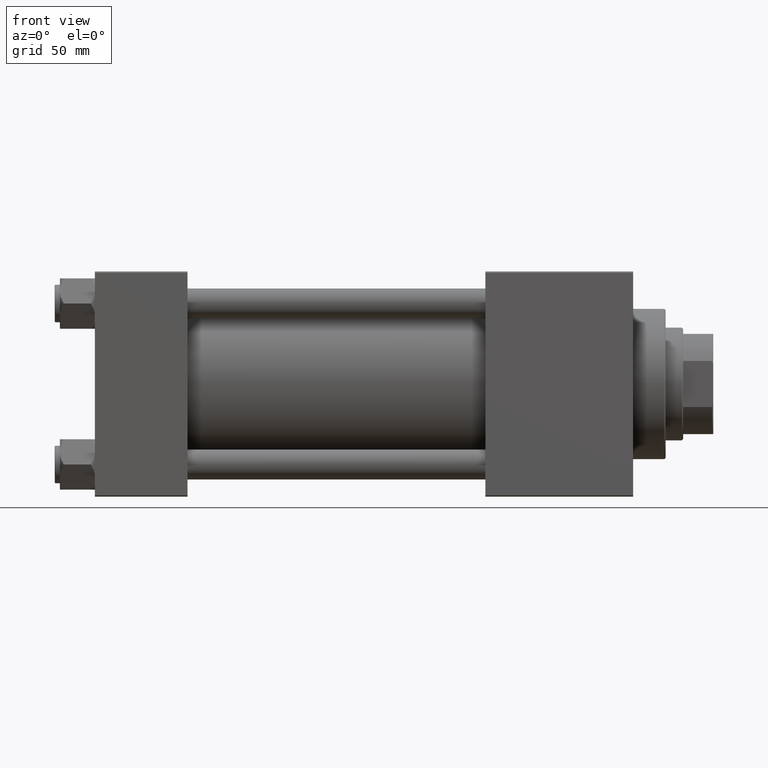
[diagram: clean part render]
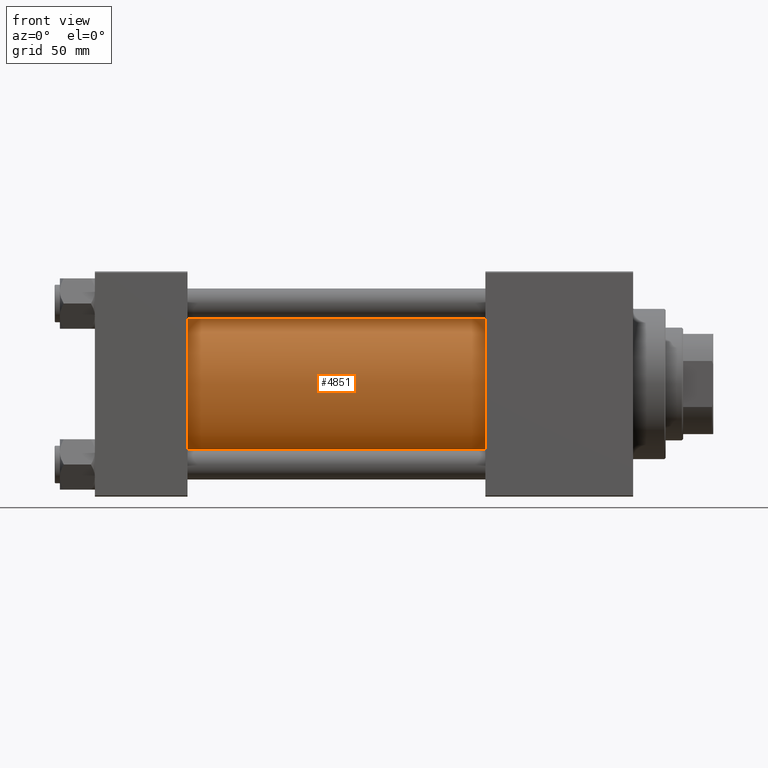
[diagram: same view with one face highlighted and labeled with its STEP entity id]
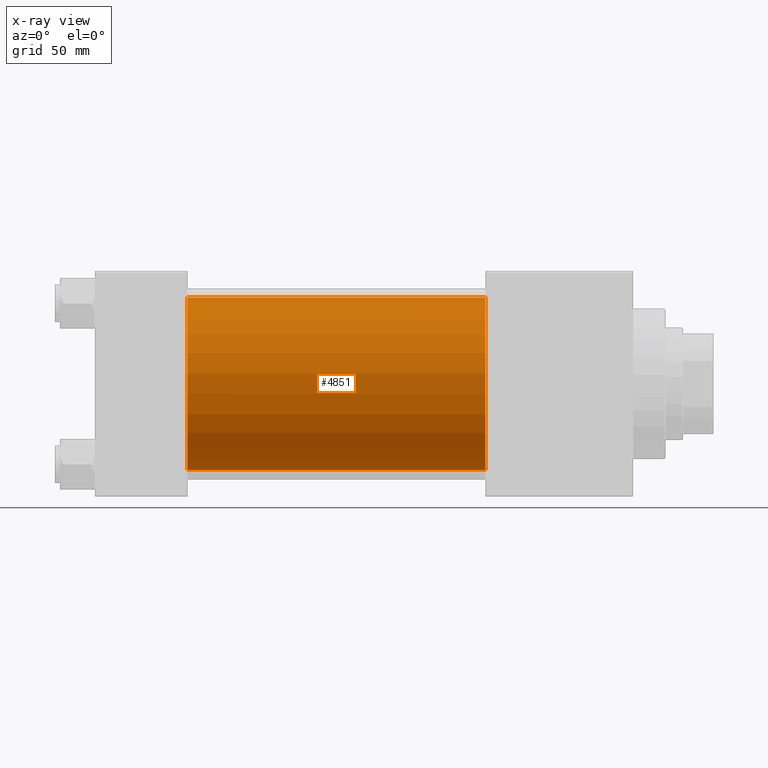
[diagram: x-ray of the same camera — body ghosted, the highlighted face saturated]
A machine part, front view. The second image highlights one B-rep face of the part: STEP entity #4851.
The next image is the same camera in x-ray: the body ghosted, the highlighted face saturated — about 2% of this face is hidden behind the body in this view.
In plain terms, the highlighted cylindrical surface (partial cylindrical patch) has radius 34.5 mm, axis along (-1, -0, -0).
Its self-contained STEP definition (entity closure, byte-faithful):
#2895 = EDGE_LOOP ( 'NONE', ( #23401, #23926, #3894, #12060 ) ) ;
#3894 = ORIENTED_EDGE ( 'NONE', *, *, #45759, .T. ) ;
#4067 = CARTESIAN_POINT ( 'NONE',  ( 156.0000000000000000, -2.602085213965210642E-15, 0.000000000000000000 ) ) ;
#4851 = ADVANCED_FACE ( 'NONE', ( #38781 ), #11423, .T. ) ;
#5236 = LINE ( 'NONE', #44012, #21196 ) ;
#9115 = LINE ( 'NONE', #36473, #40927 ) ;
#9524 = VERTEX_POINT ( 'NONE', #13651 ) ;
#9725 = EDGE_CURVE ( 'NONE', #48428, #11841, #23063, .T. ) ;
#10979 = CARTESIAN_POINT ( 'NONE',  ( 37.00000000000000711, -2.602085213965210642E-15, 0.000000000000000000 ) ) ;
#11423 = CYLINDRICAL_SURFACE ( 'NONE', #31847, 34.50000000000000000 ) ;
#11569 = DIRECTION ( 'NONE',  ( 1.000000000000000000, 0.000000000000000000, 0.000000000000000000 ) ) ;
#11841 = VERTEX_POINT ( 'NONE', #37953 ) ;
#12060 = ORIENTED_EDGE ( 'NONE', *, *, #15949, .T. ) ;
#12595 = DIRECTION ( 'NONE',  ( 0.000000000000000000, 0.000000000000000000, -1.000000000000000000 ) ) ;
#12680 = DIRECTION ( 'NONE',  ( -1.000000000000000000, -0.000000000000000000, -0.000000000000000000 ) ) ;
#13651 = CARTESIAN_POINT ( 'NONE',  ( 37.00000000000000711, 1.622946243093158675E-15, -34.50000000000000000 ) ) ;
#15949 = EDGE_CURVE ( 'NONE', #16284, #9524, #23979, .T. ) ;
#16284 = VERTEX_POINT ( 'NONE', #23056 ) ;
#18337 = AXIS2_PLACEMENT_3D ( 'NONE', #10979, #26432, #33283 ) ;
#19522 = DIRECTION ( 'NONE',  ( 0.000000000000000000, 0.000000000000000000, 1.000000000000000000 ) ) ;
#21033 = CARTESIAN_POINT ( 'NONE',  ( 156.0000000000000000, -2.602085213965210642E-15, 34.50000000000000000 ) ) ;
#21196 = VECTOR ( 'NONE', #28040, 1000.000000000000000 ) ;
#23056 = CARTESIAN_POINT ( 'NONE',  ( 37.00000000000000711, -2.602085213965210642E-15, 34.50000000000000000 ) ) ;
#23063 = CIRCLE ( 'NONE', #25500, 34.50000000000000000 ) ;
#23401 = ORIENTED_EDGE ( 'NONE', *, *, #31564, .F. ) ;
#23926 = ORIENTED_EDGE ( 'NONE', *, *, #9725, .F. ) ;
#23979 = CIRCLE ( 'NONE', #18337, 34.50000000000000000 ) ;
#25500 = AXIS2_PLACEMENT_3D ( 'NONE', #43512, #11569, #12595 ) ;
#26432 = DIRECTION ( 'NONE',  ( 1.000000000000000000, -0.000000000000000000, 0.000000000000000000 ) ) ;
#28040 = DIRECTION ( 'NONE',  ( -1.000000000000000000, -0.000000000000000000, -0.000000000000000000 ) ) ;
#31564 = EDGE_CURVE ( 'NONE', #11841, #9524, #5236, .T. ) ;
#31847 = AXIS2_PLACEMENT_3D ( 'NONE', #4067, #42844, #19522 ) ;
#33283 = DIRECTION ( 'NONE',  ( 0.000000000000000000, 0.000000000000000000, 1.000000000000000000 ) ) ;
#36473 = CARTESIAN_POINT ( 'NONE',  ( 156.0000000000000000, -2.602085213965210642E-15, 34.50000000000000000 ) ) ;
#37953 = CARTESIAN_POINT ( 'NONE',  ( 156.0000000000000000, 1.622946243093158675E-15, -34.50000000000000000 ) ) ;
#38781 = FACE_OUTER_BOUND ( 'NONE', #2895, .T. ) ;
#40927 = VECTOR ( 'NONE', #12680, 1000.000000000000000 ) ;
#42844 = DIRECTION ( 'NONE',  ( -1.000000000000000000, -0.000000000000000000, -0.000000000000000000 ) ) ;
#43512 = CARTESIAN_POINT ( 'NONE',  ( 156.0000000000000000, -2.602085213965210642E-15, 0.000000000000000000 ) ) ;
#44012 = CARTESIAN_POINT ( 'NONE',  ( 156.0000000000000000, 1.622946243093158675E-15, -34.50000000000000000 ) ) ;
#45759 = EDGE_CURVE ( 'NONE', #48428, #16284, #9115, .T. ) ;
#48428 = VERTEX_POINT ( 'NONE', #21033 ) ;